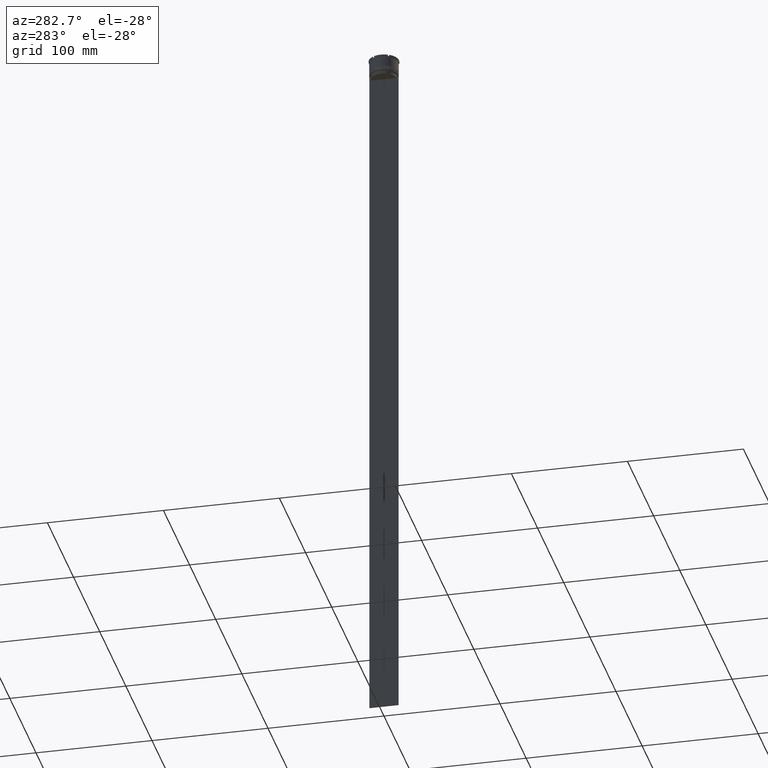
[diagram: clean part render]
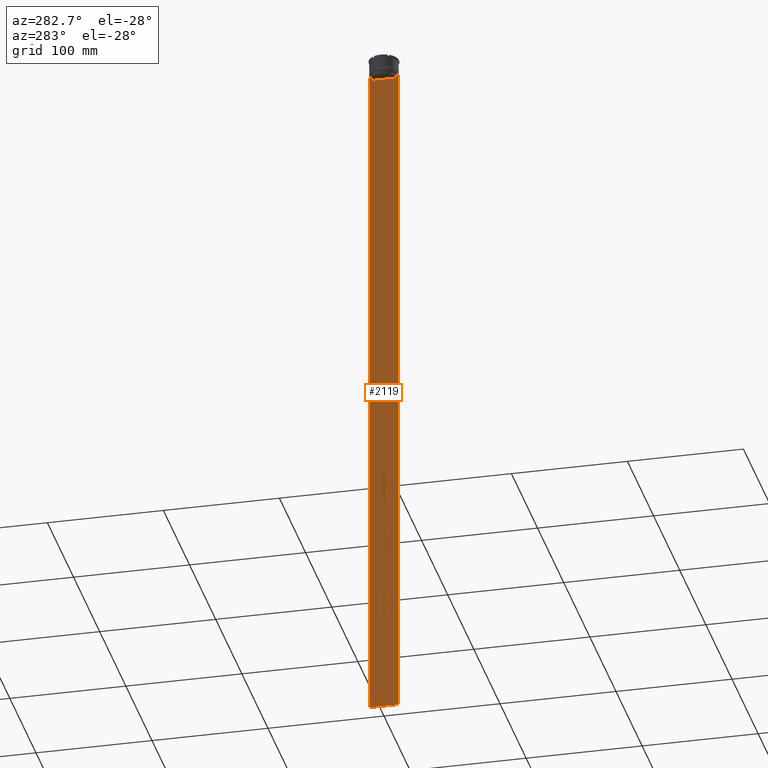
[diagram: same view with one face highlighted and labeled with its STEP entity id]
A machine part, auxiliary view. The second image highlights one B-rep face of the part: STEP entity #2119.
In plain terms, the highlighted planar face has unit normal (-1, 0, 0).
Its self-contained STEP definition (entity closure, byte-faithful):
#35 = ORIENTED_EDGE ( 'NONE', *, *, #2681, .T. ) ;
#36 = CARTESIAN_POINT ( 'NONE',  ( -0.5000000000000000000, 11.38902980942626719, -14.00000000000000178 ) ) ;
#40 = CARTESIAN_POINT ( 'NONE',  ( -0.5000000000000000000, -10.88852607105296322, 0.000000000000000000 ) ) ;
#42 = VERTEX_POINT ( 'NONE', #1436 ) ;
#66 = EDGE_CURVE ( 'NONE', #792, #1636, #639, .T. ) ;
#104 = VERTEX_POINT ( 'NONE', #2715 ) ;
#152 = CARTESIAN_POINT ( 'NONE',  ( -0.5000000000000000000, -10.88852607105296322, -14.50000000000000000 ) ) ;
#174 = VERTEX_POINT ( 'NONE', #36 ) ;
#213 = VECTOR ( 'NONE', #1292, 1000.000000000000000 ) ;
#218 = CARTESIAN_POINT ( 'NONE',  ( -0.5000000000000000000, -12.49999999999999289, -14.00000000000000178 ) ) ;
#229 = CARTESIAN_POINT ( 'NONE',  ( -0.5000000000000000000, -12.49999999999999289, -14.00000000000000178 ) ) ;
#230 = CARTESIAN_POINT ( 'NONE',  ( -0.5000000000000000000, -12.38991525394746773, -14.00000000000000178 ) ) ;
#288 = EDGE_CURVE ( 'NONE', #1139, #42, #2567, .T. ) ;
#353 = VECTOR ( 'NONE', #1519, 1000.000000000000000 ) ;
#354 = VECTOR ( 'NONE', #1850, 1000.000000000000000 ) ;
#377 = B_SPLINE_CURVE_WITH_KNOTS ( 'NONE', 3,
 ( #718, #461, #1517, #1399 ),
 .UNSPECIFIED., .F., .F.,
 ( 4, 4 ),
 ( 0.05041323384703226551, 0.05112713601261605068 ),
 .UNSPECIFIED. ) ;
#404 = ORIENTED_EDGE ( 'NONE', *, *, #832, .F. ) ;
#434 = EDGE_CURVE ( 'NONE', #42, #1427, #2610, .T. ) ;
#452 = VERTEX_POINT ( 'NONE', #152 ) ;
#461 = CARTESIAN_POINT ( 'NONE',  ( -0.5000000000000000000, -11.05536450423839234, -14.33333718996393102 ) ) ;
#497 = DIRECTION ( 'NONE',  ( -0.000000000000000000, -0.000000000000000000, 1.000000000000000000 ) ) ;
#509 = DIRECTION ( 'NONE',  ( -1.000000000000000000, 0.000000000000000000, 0.000000000000000000 ) ) ;
#517 = LINE ( 'NONE', #1833, #1486 ) ;
#586 = CARTESIAN_POINT ( 'NONE',  ( -0.5000000000000000000, -12.49999999999999289, 11.01999200639360765 ) ) ;
#639 = LINE ( 'NONE', #667, #353 ) ;
#667 = CARTESIAN_POINT ( 'NONE',  ( -0.5000000000000000000, -12.49999999999999289, -14.00000000000000178 ) ) ;
#676 = EDGE_CURVE ( 'NONE', #104, #686, #2103, .T. ) ;
#678 = VECTOR ( 'NONE', #1776, 1000.000000000000000 ) ;
#686 = VERTEX_POINT ( 'NONE', #2283 ) ;
#716 = LINE ( 'NONE', #229, #678 ) ;
#718 = CARTESIAN_POINT ( 'NONE',  ( -0.5000000000000000000, -10.88852607105296322, -14.50000000000000000 ) ) ;
#721 = DIRECTION ( 'NONE',  ( 0.000000000000000000, 0.000000000000000000, 1.000000000000000000 ) ) ;
#746 = VECTOR ( 'NONE', #2794, 1000.000000000000000 ) ;
#747 = FACE_OUTER_BOUND ( 'NONE', #2114, .T. ) ;
#749 = ORIENTED_EDGE ( 'NONE', *, *, #676, .F. ) ;
#783 = CARTESIAN_POINT ( 'NONE',  ( -0.5000000000000000000, -12.49999999999999289, -614.0000000000000000 ) ) ;
#792 = VERTEX_POINT ( 'NONE', #230 ) ;
#818 = EDGE_CURVE ( 'NONE', #2796, #917, #1183, .T. ) ;
#832 = EDGE_CURVE ( 'NONE', #452, #2809, #377, .T. ) ;
#835 = VECTOR ( 'NONE', #2010, 1000.000000000000000 ) ;
#840 = ORIENTED_EDGE ( 'NONE', *, *, #818, .F. ) ;
#917 = VERTEX_POINT ( 'NONE', #1063 ) ;
#918 = EDGE_CURVE ( 'NONE', #1427, #452, #2822, .T. ) ;
#1063 = CARTESIAN_POINT ( 'NONE',  ( -0.5000000000000000000, 12.38991525394746773, -14.00000000000000178 ) ) ;
#1122 = CARTESIAN_POINT ( 'NONE',  ( -0.5000000000000000000, -12.49999999999999289, 11.01999200639360765 ) ) ;
#1123 = AXIS2_PLACEMENT_3D ( 'NONE', #1122, #509, #721 ) ;
#1139 = VERTEX_POINT ( 'NONE', #2108 ) ;
#1183 = LINE ( 'NONE', #218, #835 ) ;
#1240 = ORIENTED_EDGE ( 'NONE', *, *, #2569, .F. ) ;
#1251 = CARTESIAN_POINT ( 'NONE',  ( -0.5000000000000000000, -12.49999999999999289, -14.00000000000000178 ) ) ;
#1253 = VECTOR ( 'NONE', #1381, 1000.000000000000000 ) ;
#1292 = DIRECTION ( 'NONE',  ( 0.000000000000000000, -1.000000000000000000, 0.000000000000000000 ) ) ;
#1304 = CARTESIAN_POINT ( 'NONE',  ( -0.5000000000000000000, 12.50000000000000711, -14.00000000000000178 ) ) ;
#1381 = DIRECTION ( 'NONE',  ( 0.000000000000000000, -1.000000000000000000, 0.000000000000000000 ) ) ;
#1399 = CARTESIAN_POINT ( 'NONE',  ( -0.5000000000000000000, -11.38902980942626719, -14.00000000000000178 ) ) ;
#1427 = VERTEX_POINT ( 'NONE', #2498 ) ;
#1436 = CARTESIAN_POINT ( 'NONE',  ( -0.5000000000000000000, 10.88852607105296144, -17.00000000000000000 ) ) ;
#1437 = CARTESIAN_POINT ( 'NONE',  ( -0.5000000000000000000, 11.05536450345590538, -14.33333719074559376 ) ) ;
#1439 = ORIENTED_EDGE ( 'NONE', *, *, #2082, .F. ) ;
#1452 = DIRECTION ( 'NONE',  ( 0.000000000000000000, 0.000000000000000000, -1.000000000000000000 ) ) ;
#1478 = CARTESIAN_POINT ( 'NONE',  ( -0.5000000000000000000, 10.88852607105296322, -14.50000000000000000 ) ) ;
#1486 = VECTOR ( 'NONE', #1632, 1000.000000000000000 ) ;
#1517 = CARTESIAN_POINT ( 'NONE',  ( -0.5000000000000000000, -11.22219891450652973, -14.16667035398018903 ) ) ;
#1519 = DIRECTION ( 'NONE',  ( 0.000000000000000000, -1.000000000000000000, 0.000000000000000000 ) ) ;
#1592 = LINE ( 'NONE', #2269, #1253 ) ;
#1607 = EDGE_CURVE ( 'NONE', #174, #1139, #1816, .T. ) ;
#1632 = DIRECTION ( 'NONE',  ( 0.000000000000000000, 0.000000000000000000, -1.000000000000000000 ) ) ;
#1636 = VERTEX_POINT ( 'NONE', #1251 ) ;
#1645 = EDGE_CURVE ( 'NONE', #1636, #104, #2806, .T. ) ;
#1776 = DIRECTION ( 'NONE',  ( 0.000000000000000000, -1.000000000000000000, 0.000000000000000000 ) ) ;
#1797 = ORIENTED_EDGE ( 'NONE', *, *, #66, .F. ) ;
#1816 = B_SPLINE_CURVE_WITH_KNOTS ( 'NONE', 3,
 ( #2329, #2344, #1437, #1478 ),
 .UNSPECIFIED., .F., .F.,
 ( 4, 4 ),
 ( 0.01935560801904634073, 0.02006307108468586772 ),
 .UNSPECIFIED. ) ;
#1833 = CARTESIAN_POINT ( 'NONE',  ( -0.5000000000000000000, 12.50000000000000711, 11.01999200639360765 ) ) ;
#1850 = DIRECTION ( 'NONE',  ( 0.000000000000000000, 0.000000000000000000, -1.000000000000000000 ) ) ;
#1856 = ORIENTED_EDGE ( 'NONE', *, *, #434, .F. ) ;
#1908 = ORIENTED_EDGE ( 'NONE', *, *, #918, .F. ) ;
#1930 = ORIENTED_EDGE ( 'NONE', *, *, #288, .F. ) ;
#2010 = DIRECTION ( 'NONE',  ( 0.000000000000000000, -1.000000000000000000, 0.000000000000000000 ) ) ;
#2082 = EDGE_CURVE ( 'NONE', #2809, #792, #1592, .T. ) ;
#2103 = LINE ( 'NONE', #783, #746 ) ;
#2108 = CARTESIAN_POINT ( 'NONE',  ( -0.5000000000000000000, 10.88852607105296322, -14.50000000000000000 ) ) ;
#2114 = EDGE_LOOP ( 'NONE', ( #2579, #1240, #840, #35, #749, #2299, #1797, #1439, #404, #1908, #1856, #1930 ) ) ;
#2119 = ADVANCED_FACE ( 'NONE', ( #747 ), #2495, .T. ) ;
#2162 = CARTESIAN_POINT ( 'NONE',  ( -0.5000000000000000000, 10.90000000000000213, -17.00000000000000000 ) ) ;
#2235 = VECTOR ( 'NONE', #497, 1000.000000000000000 ) ;
#2269 = CARTESIAN_POINT ( 'NONE',  ( -0.5000000000000000000, -12.49999999999999289, -14.00000000000000178 ) ) ;
#2283 = CARTESIAN_POINT ( 'NONE',  ( -0.5000000000000000000, 12.50000000000000711, -614.0000000000000000 ) ) ;
#2299 = ORIENTED_EDGE ( 'NONE', *, *, #1645, .F. ) ;
#2329 = CARTESIAN_POINT ( 'NONE',  ( -0.5000000000000000000, 11.38902980942626719, -14.00000000000000178 ) ) ;
#2344 = CARTESIAN_POINT ( 'NONE',  ( -0.5000000000000000000, 11.22219891375843304, -14.16667035472756808 ) ) ;
#2495 = PLANE ( 'NONE',  #1123 ) ;
#2498 = CARTESIAN_POINT ( 'NONE',  ( -0.5000000000000000000, -10.88852607105296144, -17.00000000000000000 ) ) ;
#2567 = LINE ( 'NONE', #2800, #354 ) ;
#2569 = EDGE_CURVE ( 'NONE', #917, #174, #716, .T. ) ;
#2579 = ORIENTED_EDGE ( 'NONE', *, *, #1607, .F. ) ;
#2580 = CARTESIAN_POINT ( 'NONE',  ( -0.5000000000000000000, -11.38902980942626719, -14.00000000000000178 ) ) ;
#2610 = LINE ( 'NONE', #2162, #213 ) ;
#2681 = EDGE_CURVE ( 'NONE', #2796, #686, #517, .T. ) ;
#2715 = CARTESIAN_POINT ( 'NONE',  ( -0.5000000000000000000, -12.49999999999999289, -614.0000000000000000 ) ) ;
#2794 = DIRECTION ( 'NONE',  ( 0.000000000000000000, 1.000000000000000000, 0.000000000000000000 ) ) ;
#2796 = VERTEX_POINT ( 'NONE', #1304 ) ;
#2800 = CARTESIAN_POINT ( 'NONE',  ( -0.5000000000000000000, 10.88852607105296322, 0.000000000000000000 ) ) ;
#2806 = LINE ( 'NONE', #586, #2835 ) ;
#2809 = VERTEX_POINT ( 'NONE', #2580 ) ;
#2822 = LINE ( 'NONE', #40, #2235 ) ;
#2835 = VECTOR ( 'NONE', #1452, 1000.000000000000000 ) ;